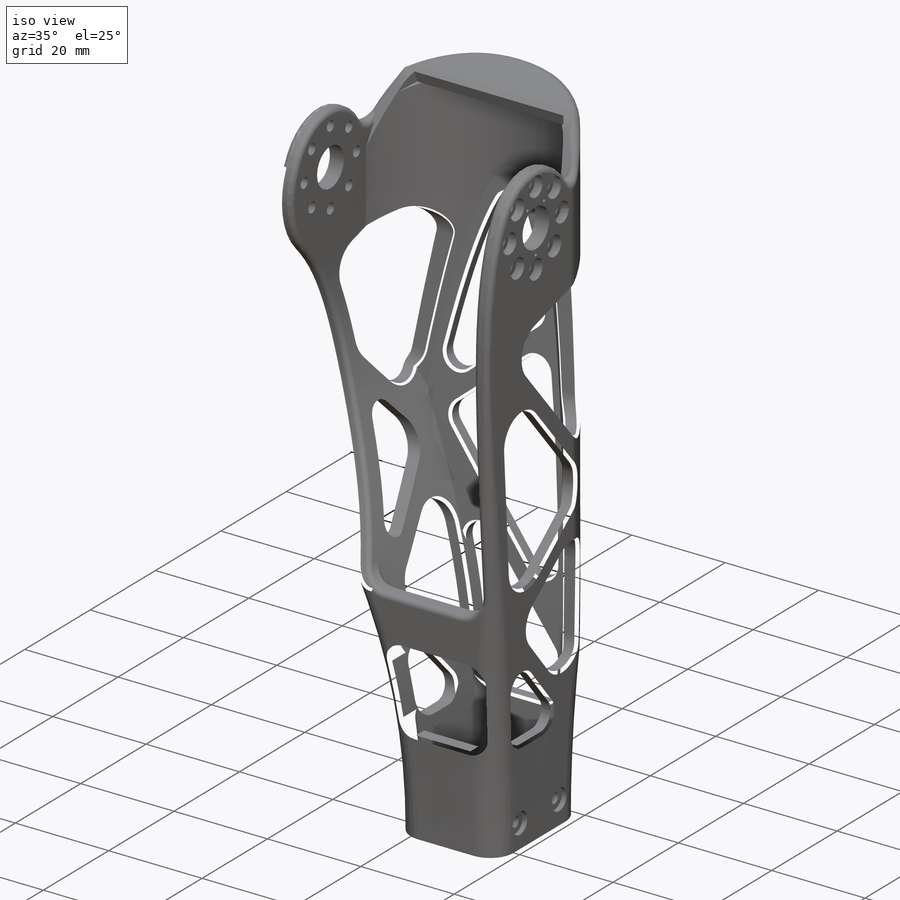
[diagram: iso view]
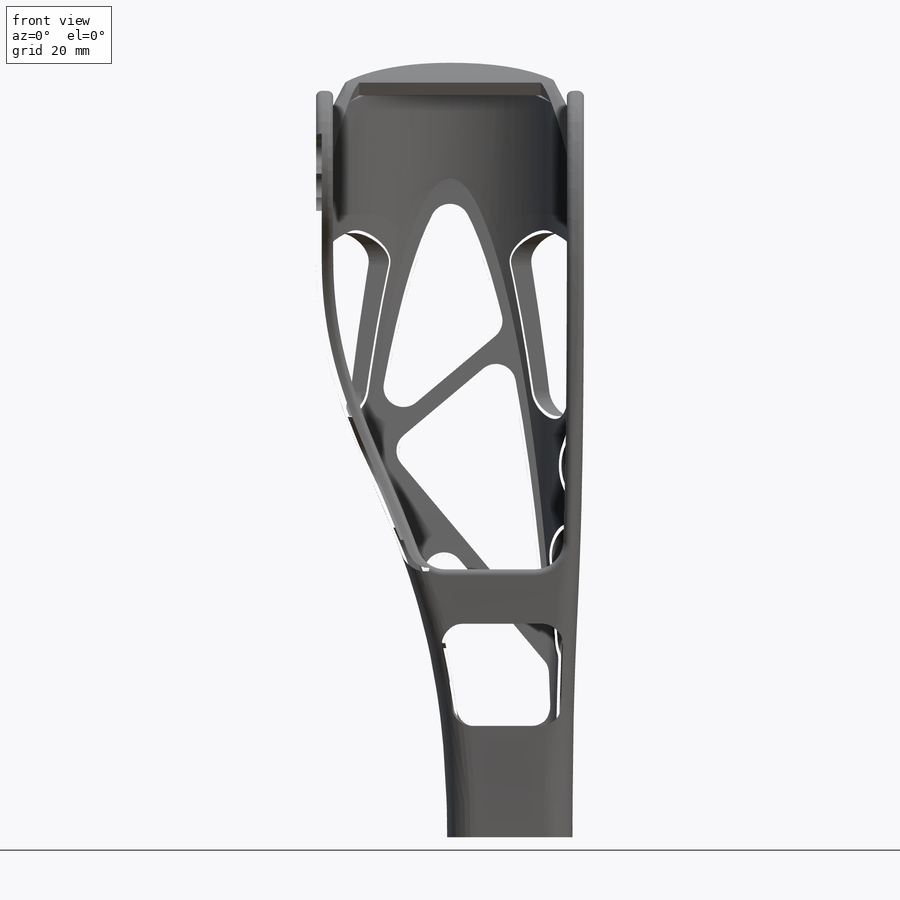
[diagram: front view]
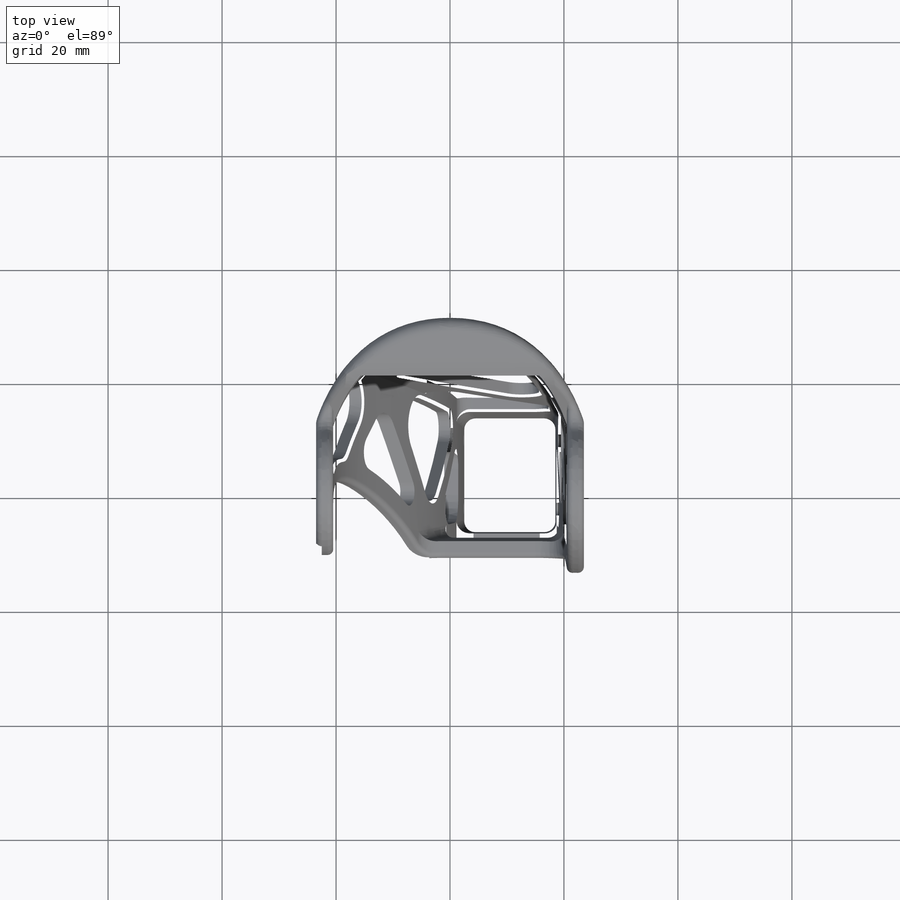
[diagram: top view]
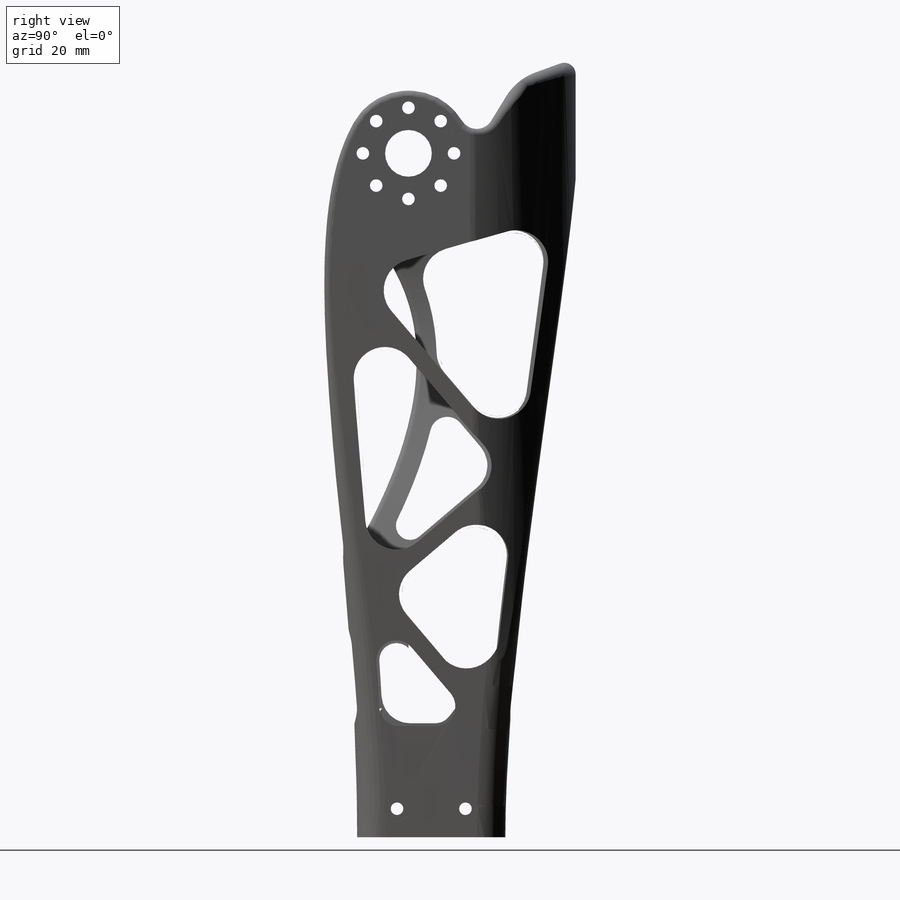
[diagram: right view]
SOLIDWORKS PART (.sldprt)
format: sldprt  version: not decoded by parser v0  size: 5,854,720 bytes
history: native  units: mm
features: sketch x23, fillet x16, cut_extrude x12, plane x8, mirror x4, extrude x2, hole x2, material x1, shell x1, delete_body x1 (+14 scaffold rows collapsed; 5 parser-record rows omitted)
feature tree (89):
  scaffold x14  (default folders/planes/origin — collapsed)
  material  "Polyamide"
  plane  "Plan de face"
  plane  "Plan de dessus"
  plane  "Plan de droite"
  sketch  "link_size"  dims[D1=120.0mm]
  plane  "horn_plan"  Offset=20.5mm
  sketch  "horn_dimension"  dims[c1.D1=22.0mm c1.D2=2.2mm c1.D3=16.0mm c1.D5=~8.888092mm c2.D5=60.0deg c2.D4=8.0]
  parser-record x5  (decoder bookkeeping rows leaked as tree rows — omitted from the tree; the rows remain in map.json)
  sketch  "Esquisse3"  dims[c1.D5=11.0mm c1.D6=~53.854192mm c1.D1=~12.586641mm c2.D1=20.0deg c2.D2=11.0mm c2.D3=15.5mm c2.D4=19.0mm c2.D6=~37.008041mm c3.D6=20.0deg c3.D7=26.0mm c3.D8=6.0mm c3.D9=~7.347602mm c4.D9=~22.243533deg c5.D9=9.0mm c5.D3=13.0mm c5.D6=~24.080997mm c6.D6=30.0deg]
  extrude  "Boss.-Extru.1"  Depth=3mm
  mirror  "Symétrie1"
  sketch  "Esquisse4"  dims[c1.D2=~34.998699mm c1.D1=11.0mm c2.D2=18.0mm c2.D1=22.0mm c2.D3=2.0mm]
  cut_extrude  "Enlèv. mat.-Extru.1"  [1 undecoded]
  plane  "middle_arm"
  sketch  "Esquisse5"  dims[c1.D1=30.0mm c1.D2=11.0mm c1.D3=~22.652815mm c1.D4=~27.234519mm c2.D1=10.0mm c2.D2=10.0mm c3.D1=0.5mm c3.D2=3.0mm c3.D3=3.0mm c3.D4=20.0mm c4.D3=~25.154959mm c4.D1=9.0mm c4.D2=0.5mm c5.D3=0.5mm]
  cut_extrude  "Enlèv. mat.-Extru.5"  [1 undecoded]
  sketch  "Esquisse7"  dims[c1.D3=20.0mm c1.D4=4.0mm c1.D5=~14.664883mm c2.D4=~3.999993mm c2.D5=73.0mm c2.D1=4.0mm c2.D2=4.0mm c3.D1=5.0mm c3.D2=4.0mm]
  sketch  "Sketch5"  dims[c1.D1=~35.881733mm c1.D2=~51.193674mm c2.D1=0.0mm c2.D2=2.0mm c2.D3=2.0mm]
  sketch  "Esquisse9"  dims[c1.D4=4.0mm c1.D1=~26.592369mm c2.D1=70.0deg c3.D1=~28.08238mm c4.D1=60.0deg c4.D4=~24.576432mm c5.D4=90.0deg c5.D2=2.0mm c5.D3=2.0mm c5.D1=0.0mm]
  sketch  "Esquisse10"  dims[D2=30.0mm D1=3.0mm]
  sketch  "Esquisse21"  dims[c1.D4=~25.933835mm c1.D6=22.0mm c1.D1=71.0mm c2.D6=5.0mm c2.D2=4.0mm c2.D3=4.0mm c3.D2=0.0mm c3.D3=0.0mm c3.D4=0.0mm c3.D5=0.0mm c3.D7=4.0mm c3.D8=4.0mm c3.D1=0.0mm]
  shell  "Coque1"  Thickness=3mm
  sketch  "Sketch10"  dims[c1.D2=25.0mm c1.D3=10.0mm c1.D4=5.0mm c1.D5=3.0mm c2.D4=73.0mm c2.D1=3.0mm]
  extrude  "Boss-Extrude3"  [1 undecoded]
  fillet  "Congé4"  Radius=3mm
  fillet  "Fillet5"  Radius=5mm
  fillet  "Fillet10"  Radius=3mm
  sketch  "Sketch3"  dims[D1=~39.170553mm]
  cut_extrude  "Cut-Extrude2"  [1 undecoded]
  cut_extrude  "Enlèv. mat.-Extru.6"  [1 undecoded]
  cut_extrude  "Enlèv. mat.-Extru.14"  [1 undecoded]
  sketch  "Sketch6"
  cut_extrude  "Cut-Extrude15"  [1 undecoded]
  sketch  "Esquisse20"  dims[c1.D3=~28.146917mm c2.D3=50.0deg c2.D1=1.5mm c2.D2=1.5mm c3.D1=2.0mm c3.D2=2.0mm]
  cut_extrude  "Enlèv. mat.-Extru.12"  [1 undecoded]
  sketch  "Esquisse15"  dims[D1=8.2mm]
  cut_extrude  "Enlèv. mat.-Extru.9"  [1 undecoded]
  hole  "CBORE for M2 Pan Head Machine Screw1"  Diameter=2.2mm Depth=10mm
  sketch  "Esquisse14"
  sketch  "Esquisse13"  dims[hole-wizard template sketch: 28 standard entries collapsed; hole parameters kept: c8.Diamètre du perçage=2.2mm c8.Profondeur du perçage=10.0mm c8.Diamètre du chambrage=4.2mm c8.Profondeur du chambrage=1.7mm c8.D5=~14.816244mm c8.Angle de pointe=118.0deg]
  sketch  "Sketch4"  dims[D1=0.75mm D2=1.0mm]
  cut_extrude  "Cut-Extrude3"  Depth=1mm
  plane  "Plan1"
  mirror  "Symétrie3"
  fillet  "Fillet1"  Radius=5mm
  fillet  "Fillet9"  Radius=2mm
  fillet  "Fillet3"  Radius=2.5mm
  fillet  "Congé5"  Radius=10mm
  fillet  "Fillet4"  Radius=3mm
  fillet  "Congé17"  Radius=3mm
  fillet  "Fillet6"  Radius=15mm
  fillet  "Fillet11"  Radius=5mm
  sketch  "Sketch14"  dims[D1=8.0mm D2=12.0mm]
  cut_extrude  "watermark_Poppy"  Depth=1mm
  sketch  "Esquisse22"  dims[c1.D4=2.4mm c1.D1=3.0mm c1.D2=5.0mm c1.D3=12.0mm c2.D4=15.0mm c2.D1=12.0mm]
  plane  "Plane1"  Offset=15mm
  hole  "CBORE for M2 Pan Head Machine Screw2"  Diameter=2.2mm Depth=26.060158mm
  sketch  "Sketch12"
  sketch  "Sketch11"  dims[hole-wizard template sketch: 42 standard entries collapsed; hole parameters kept: c12.Thru Hole Depth=~26.060158mm c12.C'Bore Dia.=4.5mm c12.C'Bore Depth=5.0mm]
  mirror  "Mirror2"
  fillet  "Congé31"  Radius=1mm
  fillet  "Congé7"  Radius=1mm
  fillet  "Fillet7"  Radius=1mm
  fillet  "Fillet8"  Radius=3mm
  fillet  "Congé19"  Radius=0.5mm
  mirror  "Mirror1"
  delete_body  "Body-Delete1"
  cut_extrude  "Point2"  [1 undecoded]
  plane  "middle_plane_right"
  sketch  "Sketch15"  dims[D1=8.0mm D2=14.0mm]
  cut_extrude  "watermark_Poppy_right"  Depth=1mm
decode coverage: 43 of 61 modeling features carry decoded parameters
note: ~ marks probable driven/reference dimensions
note: 10 parameter values undecoded
summary: no parameter record found for 10 features
note: suppression state not decoded; provenance and decode notes live in map.json
